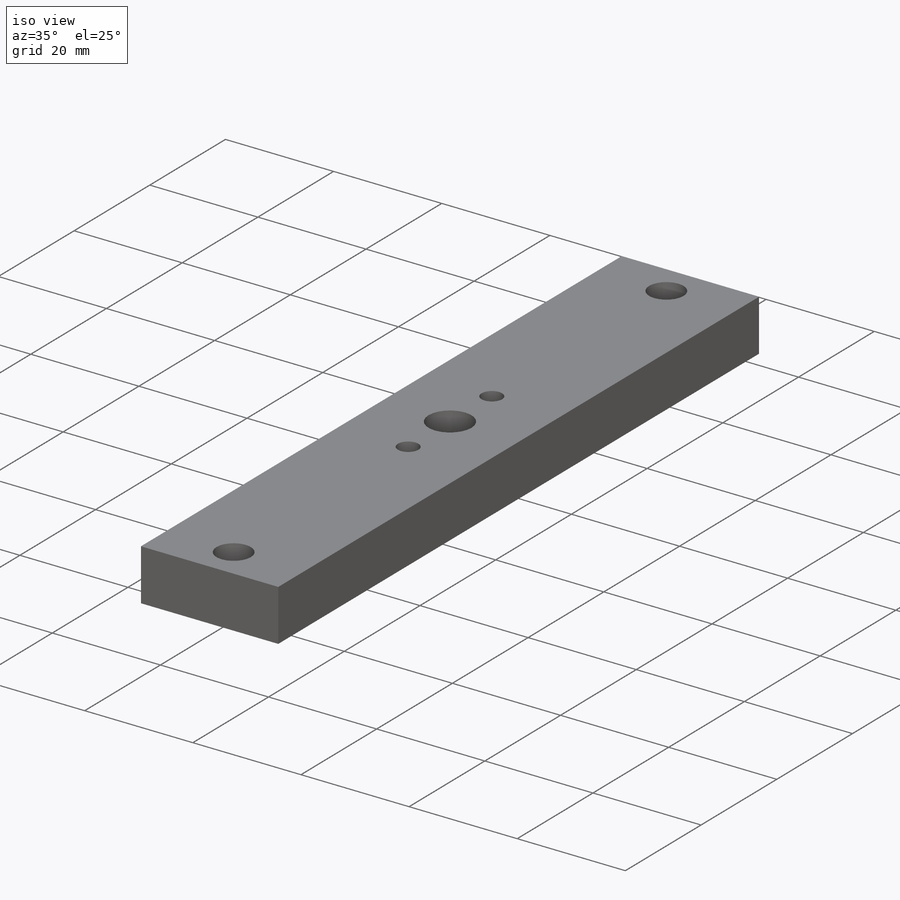
[diagram: iso view]
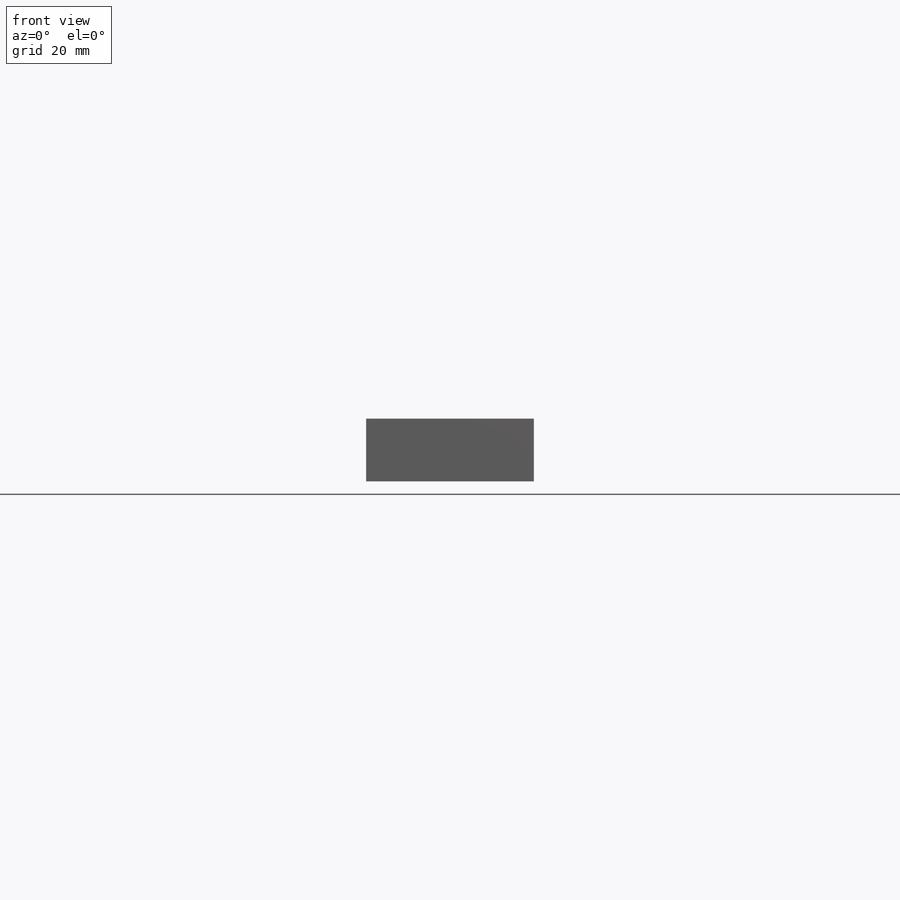
[diagram: front view]
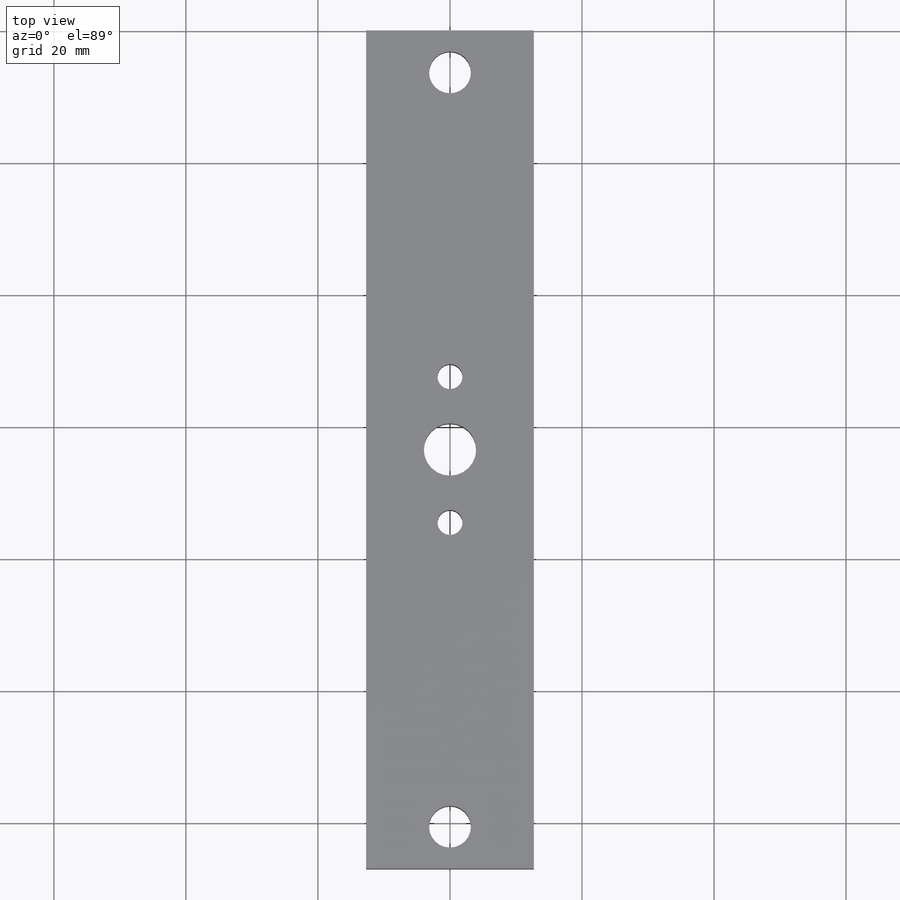
[diagram: top view]
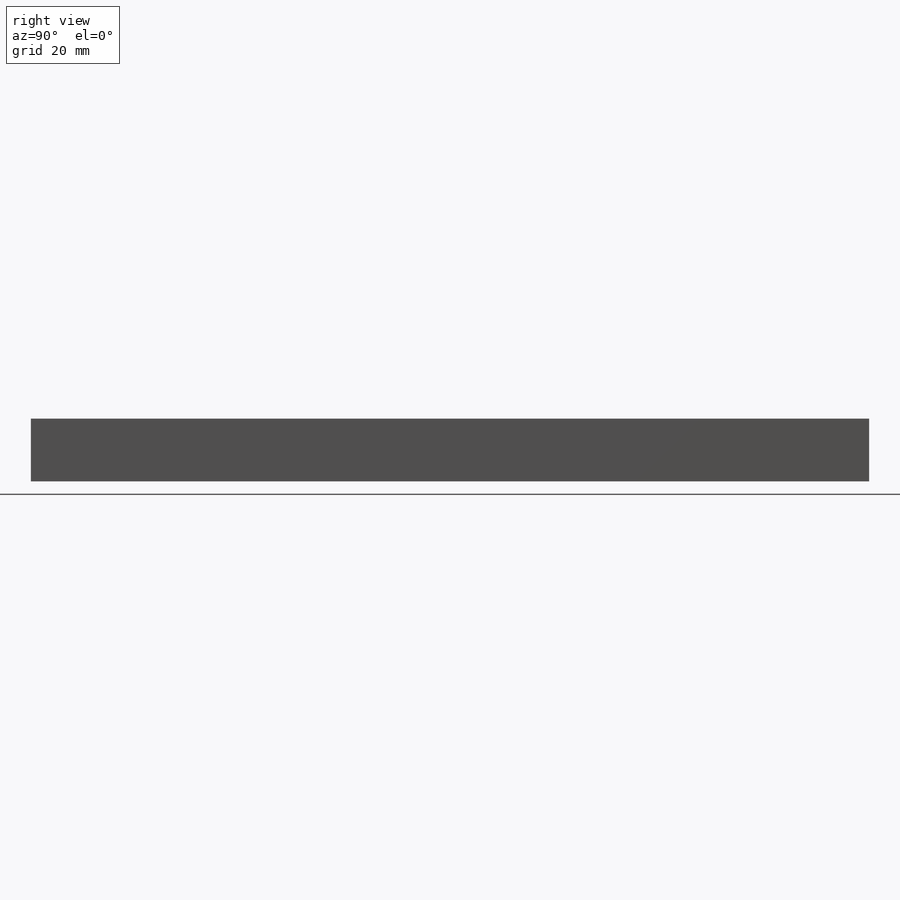
[diagram: right view]
SOLIDWORKS PART (.sldprt)
format: sldprt  version: not decoded by parser v0  size: 206,336 bytes
history: native  units: mm
features: sketch x8, hole x3, material x1, extrude x1, pattern_circular x1 (+12 scaffold rows collapsed)
feature tree (26):
  scaffold x12  (default folders/planes/origin — collapsed)
  material  "Material <not specified>"
  sketch  "Sketch1"  dims[D1=9.525mm]
  extrude  "Extrude1"  Depth=127mm
  sketch  "Sketch2"  dims[D1=11.049mm]
  hole  "1/4 (0.25) Diameter Hole1"  Diameter=6.35mm Depth=12.7mm
  sketch  "3DSketch1"
  sketch  "Sketch3"  dims[hole-wizard template sketch: 47 standard entries collapsed; hole parameters kept: c15.Hole Depth=12.7mm c15.D3=~14.816244mm c15.Drill Angle=118.0deg]
  hole  "5/16 (0.3125) Diameter Hole1"  Diameter=7.9375mm Depth=12.7mm
  sketch  "3DSketch3"
  sketch  "Sketch5"  dims[hole-wizard template sketch: 47 standard entries collapsed; hole parameters kept: c15.Hole Depth=12.7mm c15.D3=~14.816244mm c15.Drill Angle=118.0deg]
  hole  "#25 (0.1495) Diameter Hole1"  Diameter=3.7973mm Depth=12.7mm
  sketch  "3DSketch4"
  sketch  "Sketch6"  dims[hole-wizard template sketch: 50 standard entries collapsed; hole parameters above]
  pattern_circular  "CirPattern1"  Count=2 Angle=360deg
decode coverage: 10 of 13 modeling features carry decoded parameters
note: ~ marks probable driven/reference dimensions
note: suppression state not decoded; provenance and decode notes live in map.json
